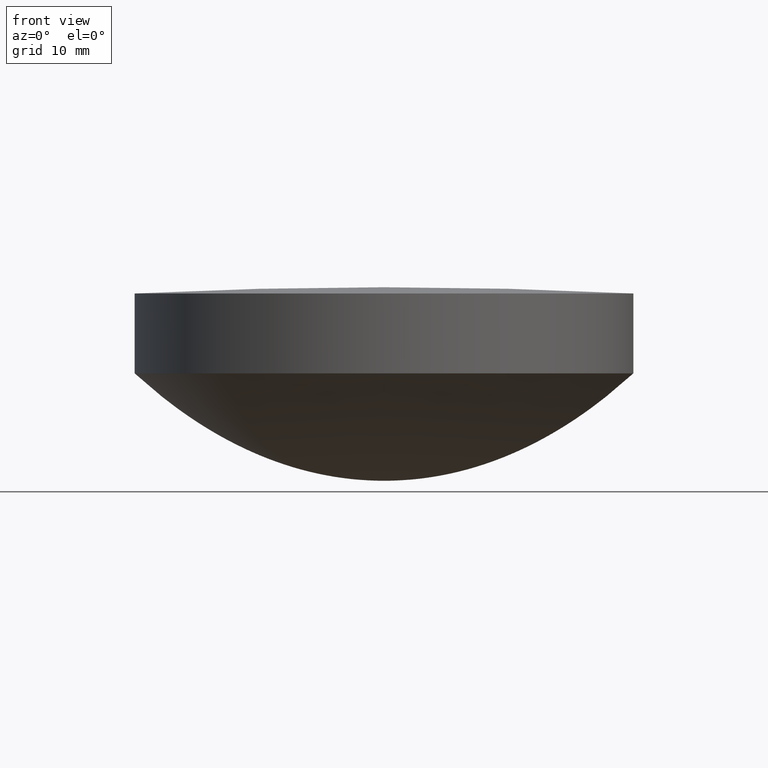
[diagram: clean part render]
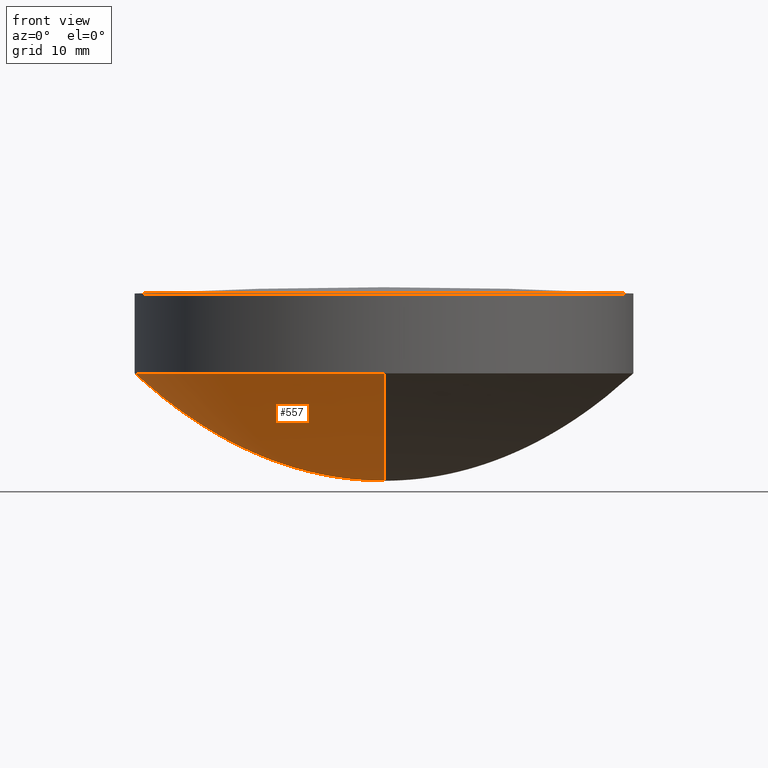
[diagram: same view with one face highlighted and labeled with its STEP entity id]
A machine part, front view. The second image highlights one B-rep face of the part: STEP entity #557.
In plain terms, the highlighted face is a freeform B-spline surface patch.
Its self-contained STEP definition (entity closure, byte-faithful):
#1 = CARTESIAN_POINT ( 'NONE',  ( -20.85846900400949977, -20.85846900400949977, 7.346323978459765591 ) ) ;
#2 = CARTESIAN_POINT ( 'NONE',  ( 5.905113600387482897, 5.905113600387467798, 0.5636193277801658796 ) ) ;
#4 = CARTESIAN_POINT ( 'NONE',  ( 20.85846900400949977, 20.85846900400949977, 7.346323978459765591 ) ) ;
#5 = CARTESIAN_POINT ( 'NONE',  ( 5.905113600387467798, -5.905113600387482897, 0.5636193277801673229 ) ) ;
#7 = CARTESIAN_POINT ( 'NONE',  ( -1.189743640055599959E-14, -17.37214179088919863, 5.033512682667420357 ) ) ;
#8 = CARTESIAN_POINT ( 'NONE',  ( -3.823211282214349804, 4.897040876387050416E-15, 0.2278546630517420124 ) ) ;
#10 = CARTESIAN_POINT ( 'NONE',  ( -16.33441800193228133, 16.33441800193239146, 4.430272686558109463 ) ) ;
#12 = CARTESIAN_POINT ( 'NONE',  ( -15.28359183643268793, -15.28359183643268793, 3.871337583447103103 ) ) ;
#13 = CARTESIAN_POINT ( 'NONE',  ( 0.6950013867032536208, 0.6950013867032492909, 0.000000000000000000 ) ) ;
#14 = CARTESIAN_POINT ( 'NONE',  ( 10.07908763383689887, -10.07908763383699835, 1.653328185034999676 ) ) ;
#15 = CARTESIAN_POINT ( 'NONE',  ( -1.215333604269309965E-14, -19.46172094395829788, 6.363201708622150399 ) ) ;
#16 = CARTESIAN_POINT ( 'NONE',  ( -1.100429485761179963E-14, -10.07908763383690065, 1.653328185035000120 ) ) ;
#17 = ORIENTED_EDGE ( 'NONE', *, *, #667, .F. ) ;
#19 = CARTESIAN_POINT ( 'NONE',  ( -10.07908763383699835, -10.07908763383689887, 1.653328185034999676 ) ) ;
#24 = CARTESIAN_POINT ( 'NONE',  ( 0.000000000000000000, 13.20684684988859914, 2.866247647743300320 ) ) ;
#25 = CARTESIAN_POINT ( 'NONE',  ( 0.000000000000000000, 0.000000000000000000, 0.000000000000000000 ) ) ;
#27 = CARTESIAN_POINT ( 'NONE',  ( 0.000000000000000000, 19.46172094395829788, 6.363201708622150399 ) ) ;
#30 = CARTESIAN_POINT ( 'NONE',  ( 0.000000000000000000, 2.778867257252229717, 0.1218098665559840116 ) ) ;
#41 = CARTESIAN_POINT ( 'NONE',  ( 7.888609052210119806E-31, 1.564219604220989712, 0.02941336789115490263 ) ) ;
#43 = CARTESIAN_POINT ( 'NONE',  ( 0.000000000000000000, 25.00000000000000000, 10.76935298651310191 ) ) ;
#45 = CARTESIAN_POINT ( 'NONE',  ( 9.031328295233819858, -9.031328295233834069, 1.329141889889510431 ) ) ;
#48 = VERTEX_POINT ( 'NONE', #602 ) ;
#49 = CARTESIAN_POINT ( 'NONE',  ( -1.256096827675829896E-14, -22.79029073525660110, 8.829490268801798436 ) ) ;
#50 = CARTESIAN_POINT ( 'NONE',  ( 6.951195123766318318, 6.951195123766305883, 0.7773047103505097422 ) ) ;
#52 = CARTESIAN_POINT ( 'NONE',  ( -17.37214179088919863, 5.726673595352979530E-15, 5.033512682667420357 ) ) ;
#53 = CARTESIAN_POINT ( 'NONE',  ( 0.000000000000000000, 5.905113600387469575, 0.5636193277801659907 ) ) ;
#56 = CARTESIAN_POINT ( 'NONE',  ( 7.888609052210119806E-31, 22.79029073525660110, 8.829490268801798436 ) ) ;
#57 = CARTESIAN_POINT ( 'NONE',  ( 4.864470756008762109, 4.864470756008748786, 0.3780127833940811755 ) ) ;
#60 = CARTESIAN_POINT ( 'NONE',  ( 17.37214179088919863, -8.298236589057690210E-15, 5.033512682667420357 ) ) ;
#63 = CARTESIAN_POINT ( 'NONE',  ( 19.46172094395829788, -8.682086052263349772E-15, 6.363201708622150399 ) ) ;
#65 = CARTESIAN_POINT ( 'NONE',  ( 14.24541506404807834, 14.24541506404807834, 3.349350597949512842 ) ) ;
#66 = CARTESIAN_POINT ( 'NONE',  ( 0.6950013867032489578, -5.234695596820090297E-15, 0.000000000000000000 ) ) ;
#67 = CARTESIAN_POINT ( 'NONE',  ( -1.283157961456979886E-14, -25.00000000000000000, 10.76935298651310191 ) ) ;
#69 = CARTESIAN_POINT ( 'NONE',  ( 12.15749446058419814, -12.15749446058419814, 2.427402912589510020 ) ) ;
#71 = CARTESIAN_POINT ( 'NONE',  ( -1.202448731581449846E-14, -18.40959124445349815, 5.677625292109239830 ) ) ;
#74 = CARTESIAN_POINT ( 'NONE',  ( 14.24541506404807834, -14.24541506404807834, 3.349350597949512842 ) ) ;
#77 = CARTESIAN_POINT ( 'NONE',  ( 7.888609052210119806E-31, 15.28359183643270036, 3.871337583447099995 ) ) ;
#78 = CARTESIAN_POINT ( 'NONE',  ( -13.20684684988860091, -13.20684684988860091, 2.866247647743300764 ) ) ;
#84 = CARTESIAN_POINT ( 'NONE',  ( 24.15614782068171706, 24.15614782068157851, 10.00039978366080007 ) ) ;
#89 = CARTESIAN_POINT ( 'NONE',  ( 0.000000000000000000, 5.905113600387469575, 0.5636193277801659907 ) ) ;
#95 = CARTESIAN_POINT ( 'NONE',  ( -1.049313046363300038E-14, -5.905113600387469575, 0.5636193277801669899 ) ) ;
#96 = CARTESIAN_POINT ( 'NONE',  ( -1.036568847079060044E-14, -4.864470756008760333, 0.3780127833940800097 ) ) ;
#100 = CARTESIAN_POINT ( 'NONE',  ( -9.961524269848648577E-15, -1.564219604220989712, 0.02941336789115640143 ) ) ;
#102 = CARTESIAN_POINT ( 'NONE',  ( 20.85846900400950332, -8.938664508406890628E-15, 7.346323978459770032 ) ) ;
#103 = CARTESIAN_POINT ( 'NONE',  ( 0.000000000000000000, 6.951195123766310324, 0.7773047103505090760 ) ) ;
#106 = CARTESIAN_POINT ( 'NONE',  ( -20.85846900400949977, 20.85846900400949977, 7.346323978459765591 ) ) ;
#107 = CARTESIAN_POINT ( 'NONE',  ( -1.049313046363300038E-14, -5.905113600387469575, 0.5636193277801669899 ) ) ;
#109 = CARTESIAN_POINT ( 'NONE',  ( 0.000000000000000000, 20.85846900400950332, 7.346323978459770032 ) ) ;
#110 = CARTESIAN_POINT ( 'NONE',  ( -2.778867257252236378, -2.778867257252229273, 0.1218098665559830263 ) ) ;
#112 = CARTESIAN_POINT ( 'NONE',  ( -19.46172094395830143, 19.46172094395830143, 6.363201708622155728 ) ) ;
#113 = CARTESIAN_POINT ( 'NONE',  ( -25.00000000000000000, 3.061616997868379887E-15, 10.76935298651310191 ) ) ;
#116 = CARTESIAN_POINT ( 'NONE',  ( 18.40959124445348394, -18.40959124445348394, 5.677625292109241606 ) ) ;
#119 = CARTESIAN_POINT ( 'NONE',  ( -11.11853514199949977, 5.343750627068510039E-15, 2.021718256513890033 ) ) ;
#120 = CARTESIAN_POINT ( 'NONE',  ( 0.000000000000000000, 0.000000000000000000, 0.000000000000000000 ) ) ;
#122 = CARTESIAN_POINT ( 'NONE',  ( 13.20684684988859914, -7.533084321507529499E-15, 2.866247647743300320 ) ) ;
#123 = CARTESIAN_POINT ( 'NONE',  ( -1.164166279889760023E-14, -15.28359183643270036, 3.871337583447099995 ) ) ;
#124 = CARTESIAN_POINT ( 'NONE',  ( 0.000000000000000000, 10.07908763383690065, 1.653328185034990128 ) ) ;
#125 = VERTEX_POINT ( 'NONE', #503 ) ;
#129 = CARTESIAN_POINT ( 'NONE',  ( -12.15749446058419814, -12.15749446058419814, 2.427402912589510020 ) ) ;
#131 = CARTESIAN_POINT ( 'NONE',  ( 0.000000000000000000, 20.85846900400950332, 7.346323978459770032 ) ) ;
#141 = CARTESIAN_POINT ( 'NONE',  ( -1.074864445519370031E-14, -7.991543677521639744, 1.035149238036800146 ) ) ;
#144 = CARTESIAN_POINT ( 'NONE',  ( 1.530808498934190141E-15, 25.00000000000000000, 10.76935298651310191 ) ) ;
#146 = CARTESIAN_POINT ( 'NONE',  ( -1.100429485761179963E-14, -10.07908763383690065, 1.653328185035000120 ) ) ;
#148 = CARTESIAN_POINT ( 'NONE',  ( 0.000000000000000000, 3.823211282214349804, 0.2278546630517420124 ) ) ;
#150 = CARTESIAN_POINT ( 'NONE',  ( -25.00000000000000355, 25.00000000000000355, 10.76935298651310546 ) ) ;
#151 = CARTESIAN_POINT ( 'NONE',  ( -7.888609052210119806E-31, 4.864470756008760333, 0.3780127833940810089 ) ) ;
#153 = B_SPLINE_CURVE_WITH_KNOTS ( 'NONE', 3,
 ( #67, #284, #390, #500, #15, #71, #649, #175, #123, #288, #173, #232, #223, #146, #464, #141, #572, #95, #200, #303, #469, #674, #420, #252 ),
 .UNSPECIFIED., .F., .F.,
 ( 4, 1, 1, 1, 1, 1, 1, 1, 1, 1, 1, 1, 1, 1, 1, 1, 1, 1, 1, 1, 1, 4 ),
 ( 0.000000000000000000, 0.1229010503966929957, 0.1935708684875130092, 0.2621222389561400079, 0.3067336890552199713, 0.3287332553817179925, 0.3935804273098579831, 0.4359173143977180254, 0.4568373513230660210, 0.5186738697918750196, 0.5591905958425089640, 0.5792556588951830454, 0.6387441682536969534, 0.6778732220164499500, 0.6972968285093580354, 0.7550674466977830290, 0.7932207973581240079, 0.8122067193442279454, 0.8688628073624710124, 0.9064369206342729468, 0.9251819328508389395, 1.000000000000000000 ),
 .UNSPECIFIED. ) ;
#154 = CARTESIAN_POINT ( 'NONE',  ( 15.28359183643268793, -15.28359183643268793, 3.871337583447103103 ) ) ;
#155 = CARTESIAN_POINT ( 'NONE',  ( 5.905113600387469575, -6.191777683673118827E-15, 0.5636193277801669899 ) ) ;
#157 = CARTESIAN_POINT ( 'NONE',  ( 16.33441800193239146, 16.33441800193228133, 4.430272686558109463 ) ) ;
#158 = CARTESIAN_POINT ( 'NONE',  ( -7.991543677521645961, 7.991543677521645961, 1.035149238036799257 ) ) ;
#161 = CARTESIAN_POINT ( 'NONE',  ( 19.46172094395830143, 19.46172094395830143, 6.363201708622155728 ) ) ;
#162 = CARTESIAN_POINT ( 'NONE',  ( 0.000000000000000000, 2.778867257252229717, 0.1218098665559840116 ) ) ;
#164 = CARTESIAN_POINT ( 'NONE',  ( -22.79029073525660110, -22.79029073525660110, 8.829490268801800212 ) ) ;
#165 = CARTESIAN_POINT ( 'NONE',  ( 0.000000000000000000, 0.000000000000000000, 0.000000000000000000 ) ) ;
#167 = CARTESIAN_POINT ( 'NONE',  ( 17.37214179088920574, -17.37214179088920574, 5.033512682667418581 ) ) ;
#168 = CARTESIAN_POINT ( 'NONE',  ( -1.283157961456979886E-14, -25.00000000000000000, 10.76935298651310191 ) ) ;
#171 = CARTESIAN_POINT ( 'NONE',  ( -10.07908763383689887, 10.07908763383699835, 1.653328185034991238 ) ) ;
#173 = CARTESIAN_POINT ( 'NONE',  ( -1.138733488885590034E-14, -13.20684684988859914, 2.866247647743300320 ) ) ;
#174 = CARTESIAN_POINT ( 'NONE',  ( -11.11853514199950688, 11.11853514199950688, 2.021718256513889589 ) ) ;
#175 = CARTESIAN_POINT ( 'NONE',  ( -1.177035188890149828E-14, -16.33441800193239857, 4.430272686558109463 ) ) ;
#176 = CARTESIAN_POINT ( 'NONE',  ( 12.15749446058419814, 12.15749446058419814, 2.427402912589510020 ) ) ;
#177 = VERTEX_POINT ( 'NONE', #646 ) ;
#180 = CARTESIAN_POINT ( 'NONE',  ( -11.11853514199950688, -11.11853514199950688, 2.021718256513889589 ) ) ;
#183 = CARTESIAN_POINT ( 'NONE',  ( 0.000000000000000000, 24.15614782068159982, 10.00039978366080184 ) ) ;
#184 = B_SPLINE_CURVE_WITH_KNOTS ( 'NONE', 3,
 ( #606, #183, #554, #131, #27, #304, #189, #246, #77, #516, #24, #410, #236, #465, #455, #355, #187, #89, #357, #306, #30, #310, #570, #25 ),
 .UNSPECIFIED., .F., .F.,
 ( 4, 1, 1, 1, 1, 1, 1, 1, 1, 1, 1, 1, 1, 1, 1, 1, 1, 1, 1, 1, 1, 4 ),
 ( 0.000000000000000000, 0.1229010503966929957, 0.1935708684875130092, 0.2621222389561400079, 0.3067336890552199713, 0.3287332553817179925, 0.3935804273098579831, 0.4359173143977180254, 0.4568373513230660210, 0.5186738697918750196, 0.5591905958425089640, 0.5792556588951830454, 0.6387441682536969534, 0.6778732220164499500, 0.6972968285093580354, 0.7550674466977830290, 0.7932207973581240079, 0.8122067193442279454, 0.8688628073624710124, 0.9064369206342729468, 0.9251819328508389395, 1.000000000000000000 ),
 .UNSPECIFIED. ) ;
#187 = CARTESIAN_POINT ( 'NONE',  ( 0.000000000000000000, 6.951195123766310324, 0.7773047103505090760 ) ) ;
#189 = CARTESIAN_POINT ( 'NONE',  ( 0.000000000000000000, 17.37214179088919863, 5.033512682667420357 ) ) ;
#191 = CARTESIAN_POINT ( 'NONE',  ( -1.272823752753419907E-14, -24.15614782068159982, 10.00039978366080184 ) ) ;
#197 = CARTESIAN_POINT ( 'NONE',  ( -25.00000000000000000, 3.061616997868379887E-15, 10.76935298651310191 ) ) ;
#200 = CARTESIAN_POINT ( 'NONE',  ( -1.036568847079060044E-14, -4.864470756008760333, 0.3780127833940800097 ) ) ;
#203 = CARTESIAN_POINT ( 'NONE',  ( 0.000000000000000000, 7.991543677521639744, 1.035149238036800146 ) ) ;
#205 = CARTESIAN_POINT ( 'NONE',  ( -1.023817096262419816E-14, -3.823211282214349804, 0.2278546630517420124 ) ) ;
#208 = CARTESIAN_POINT ( 'NONE',  ( 0.000000000000000000, 19.46172094395829788, 6.363201708622150399 ) ) ;
#209 = CARTESIAN_POINT ( 'NONE',  ( -4.864470756008769214, -4.864470756008748786, 0.3780127833940796767 ) ) ;
#211 = CARTESIAN_POINT ( 'NONE',  ( -22.79029073525660110, 6.058439533454139470E-15, 8.829490268801798436 ) ) ;
#212 = CARTESIAN_POINT ( 'NONE',  ( -7.888609052210119806E-31, 4.864470756008760333, 0.3780127833940810089 ) ) ;
#214 = CARTESIAN_POINT ( 'NONE',  ( 16.33441800193228133, -16.33441800193239146, 4.430272686558109463 ) ) ;
#215 = CARTESIAN_POINT ( 'NONE',  ( -1.011027570588629850E-14, -2.778867257252229717, 0.1218098665559829985 ) ) ;
#218 = EDGE_CURVE ( 'NONE', #177, #125, #153, .T. ) ;
#219 = CARTESIAN_POINT ( 'NONE',  ( 0.000000000000000000, 16.33441800193239857, 4.430272686558109463 ) ) ;
#220 = CARTESIAN_POINT ( 'NONE',  ( -0.6950013867032589499, 4.705493264607110262E-15, 0.000000000000000000 ) ) ;
#221 = CARTESIAN_POINT ( 'NONE',  ( -14.24541506404807834, -14.24541506404807834, 3.349350597949512842 ) ) ;
#222 = CARTESIAN_POINT ( 'NONE',  ( 0.000000000000000000, 0.6950013867032539538, 0.000000000000000000 ) ) ;
#223 = CARTESIAN_POINT ( 'NONE',  ( -1.113159046398710005E-14, -11.11853514199949977, 2.021718256513890033 ) ) ;
#225 = CARTESIAN_POINT ( 'NONE',  ( 10.07908763383690065, -6.958524274641328746E-15, 1.653328185035000120 ) ) ;
#226 = CARTESIAN_POINT ( 'NONE',  ( 0.000000000000000000, 0.000000000000000000, 0.000000000000000000 ) ) ;
#230 = CARTESIAN_POINT ( 'NONE',  ( -13.20684684988860091, 13.20684684988860091, 2.866247647743300764 ) ) ;
#231 = ORIENTED_EDGE ( 'NONE', *, *, #296, .T. ) ;
#232 = CARTESIAN_POINT ( 'NONE',  ( -1.125882628438199991E-14, -12.15749446058419814, 2.427402912589510464 ) ) ;
#233 = CARTESIAN_POINT ( 'NONE',  ( -9.031328295233839398, 5.215946067866010359E-15, 1.329141889889509986 ) ) ;
#234 = VERTEX_POINT ( 'NONE', #515 ) ;
#236 = CARTESIAN_POINT ( 'NONE',  ( 0.000000000000000000, 11.11853514199949977, 2.021718256513890033 ) ) ;
#246 = CARTESIAN_POINT ( 'NONE',  ( 0.000000000000000000, 16.33441800193239857, 4.430272686558109463 ) ) ;
#252 = CARTESIAN_POINT ( 'NONE',  ( 0.000000000000000000, 0.000000000000000000, 0.000000000000000000 ) ) ;
#254 = CARTESIAN_POINT ( 'NONE',  ( -25.00000000000000000, 25.00000000000000000, 10.76935298651310546 ) ) ;
#256 = CARTESIAN_POINT ( 'NONE',  ( -1.564219604220989490, 1.564219604220997928, 0.02941336789115489223 ) ) ;
#258 = ORIENTED_EDGE ( 'NONE', *, *, #218, .F. ) ;
#260 = CARTESIAN_POINT ( 'NONE',  ( 4.864470756008748786, -4.864470756008769214, 0.3780127833940796767 ) ) ;
#263 =( BOUNDED_SURFACE ( )  B_SPLINE_SURFACE ( 3, 2, ( 
 ( #407, #150, #412, #613, #663, #513, #526, #617, #43 ),
 ( #668, #298, #352, #509, #191, #458, #561, #84, #301 ),
 ( #56, #590, #211, #164, #49, #267, #481, #264, #379 ),
 ( #109, #106, #435, #1, #543, #587, #102, #4, #329 ),
 ( #326, #112, #640, #275, #431, #537, #63, #161, #208 ),
 ( #540, #271, #372, #323, #534, #116, #383, #279, #424 ),
 ( #495, #487, #52, #643, #7, #167, #60, #427, #491 ),
 ( #484, #10, #385, #632, #635, #214, #594, #157, #219 ),
 ( #439, #580, #332, #12, #629, #154, #531, #375, #320 ),
 ( #583, #648, #504, #221, #442, #74, #555, #65, #552 ),
 ( #342, #230, #346, #78, #402, #388, #122, #451, #645 ),
 ( #607, #449, #291, #129, #282, #69, #446, #176, #651 ),
 ( #338, #174, #119, #180, #392, #286, #502, #396, #334 ),
 ( #124, #171, #499, #19, #16, #14, #225, #601, #597 ),
 ( #603, #545, #233, #548, #654, #45, #268, #538, #327 ),
 ( #581, #158, #482, #324, #630, #584, #474, #680, #203 ),
 ( #103, #321, #532, #527, #376, #422, #272, #50, #524 ),
 ( #53, #627, #265, #535, #107, #5, #155, #2, #488 ),
 ( #151, #373, #485, #209, #96, #260, #477, #57, #212 ),
 ( #148, #428, #8, #633, #205, #380, #432, #588, #636 ),
 ( #162, #313, #425, #110, #215, #369, #436, #366, #574 ),
 ( #41, #256, #678, #578, #100, #316, #393, #287, #595 ),
 ( #222, #591, #220, #549, #389, #496, #66, #13, #544 ),
 ( #330, #492, #333, #541, #120, #386, #226, #641, #165 ) ),
 .UNSPECIFIED., .F., .T., .F. ) 
 B_SPLINE_SURFACE_WITH_KNOTS ( ( 4, 1, 1, 1, 1, 1, 1, 1, 1, 1, 1, 1, 1, 1, 1, 1, 1, 1, 1, 1, 1, 4 ),
 ( 3, 2, 2, 2, 3 ),
 ( 0.000000000000000000, 0.1229010503966929957, 0.1935708684875130092, 0.2621222389561400079, 0.3067336890552199713, 0.3287332553817179925, 0.3935804273098579831, 0.4359173143977180254, 0.4568373513230660210, 0.5186738697918750196, 0.5591905958425089640, 0.5792556588951830454, 0.6387441682536969534, 0.6778732220164499500, 0.6972968285093580354, 0.7550674466977830290, 0.7932207973581240079, 0.8122067193442279454, 0.8688628073624710124, 0.9064369206342729468, 0.9251819328508389395, 1.000000000000000000 ),
 ( 0.000000000000000000, 90.00000000000000000, 180.0000000000000000, 270.0000000000000000, 360.0000000000000000 ),
 .UNSPECIFIED. ) 
 GEOMETRIC_REPRESENTATION_ITEM ( )  RATIONAL_B_SPLINE_SURFACE ( (
 ( 1.000000000000000000, 0.7071067811865480168, 1.000000000000000000, 0.7071067811865480168, 1.000000000000000000, 0.7071067811865480168, 1.000000000000000000, 0.7071067811865480168, 1.000000000000000000),
 ( 1.000000000000000000, 0.7071067811865480168, 1.000000000000000000, 0.7071067811865480168, 1.000000000000000000, 0.7071067811865480168, 1.000000000000000000, 0.7071067811865480168, 1.000000000000000000),
 ( 1.000000000000000000, 0.7071067811865480168, 1.000000000000000000, 0.7071067811865480168, 1.000000000000000000, 0.7071067811865480168, 1.000000000000000000, 0.7071067811865480168, 1.000000000000000000),
 ( 1.000000000000000000, 0.7071067811865480168, 1.000000000000000000, 0.7071067811865480168, 1.000000000000000000, 0.7071067811865480168, 1.000000000000000000, 0.7071067811865480168, 1.000000000000000000),
 ( 1.000000000000000000, 0.7071067811865480168, 1.000000000000000000, 0.7071067811865480168, 1.000000000000000000, 0.7071067811865480168, 1.000000000000000000, 0.7071067811865480168, 1.000000000000000000),
 ( 1.000000000000000000, 0.7071067811865480168, 1.000000000000000000, 0.7071067811865480168, 1.000000000000000000, 0.7071067811865480168, 1.000000000000000000, 0.7071067811865480168, 1.000000000000000000),
 ( 1.000000000000000000, 0.7071067811865480168, 1.000000000000000000, 0.7071067811865480168, 1.000000000000000000, 0.7071067811865480168, 1.000000000000000000, 0.7071067811865480168, 1.000000000000000000),
 ( 1.000000000000000000, 0.7071067811865480168, 1.000000000000000000, 0.7071067811865480168, 1.000000000000000000, 0.7071067811865480168, 1.000000000000000000, 0.7071067811865480168, 1.000000000000000000),
 ( 1.000000000000000000, 0.7071067811865480168, 1.000000000000000000, 0.7071067811865480168, 1.000000000000000000, 0.7071067811865480168, 1.000000000000000000, 0.7071067811865480168, 1.000000000000000000),
 ( 1.000000000000000000, 0.7071067811865480168, 1.000000000000000000, 0.7071067811865480168, 1.000000000000000000, 0.7071067811865480168, 1.000000000000000000, 0.7071067811865480168, 1.000000000000000000),
 ( 1.000000000000000000, 0.7071067811865480168, 1.000000000000000000, 0.7071067811865480168, 1.000000000000000000, 0.7071067811865480168, 1.000000000000000000, 0.7071067811865480168, 1.000000000000000000),
 ( 1.000000000000000000, 0.7071067811865480168, 1.000000000000000000, 0.7071067811865480168, 1.000000000000000000, 0.7071067811865480168, 1.000000000000000000, 0.7071067811865480168, 1.000000000000000000),
 ( 1.000000000000000000, 0.7071067811865480168, 1.000000000000000000, 0.7071067811865480168, 1.000000000000000000, 0.7071067811865480168, 1.000000000000000000, 0.7071067811865480168, 1.000000000000000000),
 ( 1.000000000000000000, 0.7071067811865480168, 1.000000000000000000, 0.7071067811865480168, 1.000000000000000000, 0.7071067811865480168, 1.000000000000000000, 0.7071067811865480168, 1.000000000000000000),
 ( 1.000000000000000000, 0.7071067811865480168, 1.000000000000000000, 0.7071067811865480168, 1.000000000000000000, 0.7071067811865480168, 1.000000000000000000, 0.7071067811865480168, 1.000000000000000000),
 ( 1.000000000000000000, 0.7071067811865480168, 1.000000000000000000, 0.7071067811865480168, 1.000000000000000000, 0.7071067811865480168, 1.000000000000000000, 0.7071067811865480168, 1.000000000000000000),
 ( 1.000000000000000000, 0.7071067811865480168, 1.000000000000000000, 0.7071067811865480168, 1.000000000000000000, 0.7071067811865480168, 1.000000000000000000, 0.7071067811865480168, 1.000000000000000000),
 ( 1.000000000000000000, 0.7071067811865480168, 1.000000000000000000, 0.7071067811865480168, 1.000000000000000000, 0.7071067811865480168, 1.000000000000000000, 0.7071067811865480168, 1.000000000000000000),
 ( 1.000000000000000000, 0.7071067811865480168, 1.000000000000000000, 0.7071067811865480168, 1.000000000000000000, 0.7071067811865480168, 1.000000000000000000, 0.7071067811865480168, 1.000000000000000000),
 ( 1.000000000000000000, 0.7071067811865480168, 1.000000000000000000, 0.7071067811865480168, 1.000000000000000000, 0.7071067811865480168, 1.000000000000000000, 0.7071067811865480168, 1.000000000000000000),
 ( 1.000000000000000000, 0.7071067811865480168, 1.000000000000000000, 0.7071067811865480168, 1.000000000000000000, 0.7071067811865480168, 1.000000000000000000, 0.7071067811865480168, 1.000000000000000000),
 ( 1.000000000000000000, 0.7071067811865480168, 1.000000000000000000, 0.7071067811865480168, 1.000000000000000000, 0.7071067811865480168, 1.000000000000000000, 0.7071067811865480168, 1.000000000000000000),
 ( 1.000000000000000000, 0.7071067811865480168, 1.000000000000000000, 0.7071067811865480168, 1.000000000000000000, 0.7071067811865480168, 1.000000000000000000, 0.7071067811865480168, 1.000000000000000000),
 ( 1.000000000000000000, 0.7071067811865480168, 1.000000000000000000, 0.7071067811865480168, 1.000000000000000000, 0.7071067811865480168, 1.000000000000000000, 0.7071067811865480168, 1.000000000000000000) ) ) 
 REPRESENTATION_ITEM ( '' )  SURFACE ( )  );
#264 = CARTESIAN_POINT ( 'NONE',  ( 22.79029073525660110, 22.79029073525660110, 8.829490268801800212 ) ) ;
#265 = CARTESIAN_POINT ( 'NONE',  ( -5.905113600387480233, 5.024520626891460206E-15, 0.5636193277801669899 ) ) ;
#267 = CARTESIAN_POINT ( 'NONE',  ( 22.79029073525660110, -22.79029073525660110, 8.829490268801800212 ) ) ;
#268 = CARTESIAN_POINT ( 'NONE',  ( 9.031328295233830517, -6.766054006596770075E-15, 1.329141889889509986 ) ) ;
#271 = CARTESIAN_POINT ( 'NONE',  ( -18.40959124445348394, 18.40959124445348394, 5.677625292109241606 ) ) ;
#272 = CARTESIAN_POINT ( 'NONE',  ( 6.951195123766299666, -6.383939742061079964E-15, 0.7773047103505080768 ) ) ;
#275 = CARTESIAN_POINT ( 'NONE',  ( -19.46172094395830143, -19.46172094395830143, 6.363201708622155728 ) ) ;
#279 = CARTESIAN_POINT ( 'NONE',  ( 18.40959124445348394, 18.40959124445348394, 5.677625292109241606 ) ) ;
#280 = CARTESIAN_POINT ( 'NONE',  ( -25.00000000000000355, -24.99999999999974420, 10.76935298651310724 ) ) ;
#282 = CARTESIAN_POINT ( 'NONE',  ( -1.125882628438199991E-14, -12.15749446058419814, 2.427402912589510464 ) ) ;
#284 = CARTESIAN_POINT ( 'NONE',  ( -1.272823752753419907E-14, -24.15614782068159982, 10.00039978366080184 ) ) ;
#286 = CARTESIAN_POINT ( 'NONE',  ( 11.11853514199950688, -11.11853514199950688, 2.021718256513889589 ) ) ;
#287 = CARTESIAN_POINT ( 'NONE',  ( 1.564219604220989490, 1.564219604220989490, 0.02941336789115489223 ) ) ;
#288 = CARTESIAN_POINT ( 'NONE',  ( -1.151452281277259944E-14, -14.24541506404810143, 3.349350597949509734 ) ) ;
#291 = CARTESIAN_POINT ( 'NONE',  ( -12.15749446058419814, 5.407368537265959970E-15, 2.427402912589510464 ) ) ;
#296 = EDGE_CURVE ( 'NONE', #234, #125, #184, .T. ) ;
#298 = CARTESIAN_POINT ( 'NONE',  ( -24.15614782068157851, 24.15614782068171706, 10.00039978366080007 ) ) ;
#301 = CARTESIAN_POINT ( 'NONE',  ( 0.000000000000000000, 24.15614782068159982, 10.00039978366080184 ) ) ;
#303 = CARTESIAN_POINT ( 'NONE',  ( -1.023817096262419816E-14, -3.823211282214349804, 0.2278546630517420124 ) ) ;
#304 = CARTESIAN_POINT ( 'NONE',  ( 0.000000000000000000, 18.40959124445349815, 5.677625292109239830 ) ) ;
#306 = CARTESIAN_POINT ( 'NONE',  ( 0.000000000000000000, 3.823211282214349804, 0.2278546630517420124 ) ) ;
#310 = CARTESIAN_POINT ( 'NONE',  ( 7.888609052210119806E-31, 1.564219604220989712, 0.02941336789115490263 ) ) ;
#313 = CARTESIAN_POINT ( 'NONE',  ( -2.778867257252229273, 2.778867257252236378, 0.1218098665559840255 ) ) ;
#316 = CARTESIAN_POINT ( 'NONE',  ( 1.564219604220981052, -1.564219604220997928, 0.02941336789115638062 ) ) ;
#320 = CARTESIAN_POINT ( 'NONE',  ( 7.888609052210119806E-31, 15.28359183643270036, 3.871337583447099995 ) ) ;
#321 = CARTESIAN_POINT ( 'NONE',  ( -6.951195123766318318, 6.951195123766318318, 0.7773047103505097422 ) ) ;
#323 = CARTESIAN_POINT ( 'NONE',  ( -18.40959124445348394, -18.40959124445348394, 5.677625292109241606 ) ) ;
#324 = CARTESIAN_POINT ( 'NONE',  ( -7.991543677521645961, -7.991543677521645961, 1.035149238036799257 ) ) ;
#326 = CARTESIAN_POINT ( 'NONE',  ( 0.000000000000000000, 19.46172094395829788, 6.363201708622150399 ) ) ;
#327 = CARTESIAN_POINT ( 'NONE',  ( 0.000000000000000000, 9.031328295233830517, 1.329141889889509986 ) ) ;
#329 = CARTESIAN_POINT ( 'NONE',  ( 0.000000000000000000, 20.85846900400950332, 7.346323978459770032 ) ) ;
#330 = CARTESIAN_POINT ( 'NONE',  ( 0.000000000000000000, 0.000000000000000000, 0.000000000000000000 ) ) ;
#332 = CARTESIAN_POINT ( 'NONE',  ( -15.28359183643270036, 5.598786794523760128E-15, 3.871337583447099995 ) ) ;
#333 = CARTESIAN_POINT ( 'NONE',  ( 0.000000000000000000, 0.000000000000000000, 0.000000000000000000 ) ) ;
#334 = CARTESIAN_POINT ( 'NONE',  ( 0.000000000000000000, 11.11853514199949977, 2.021718256513890033 ) ) ;
#338 = CARTESIAN_POINT ( 'NONE',  ( 0.000000000000000000, 11.11853514199949977, 2.021718256513890033 ) ) ;
#342 = CARTESIAN_POINT ( 'NONE',  ( 0.000000000000000000, 13.20684684988859914, 2.866247647743300320 ) ) ;
#346 = CARTESIAN_POINT ( 'NONE',  ( -13.20684684988859914, 5.471622839502929115E-15, 2.866247647743300320 ) ) ;
#352 = CARTESIAN_POINT ( 'NONE',  ( -24.15614782068159982, 6.142074158842060336E-15, 10.00039978366080184 ) ) ;
#355 = CARTESIAN_POINT ( 'NONE',  ( 0.000000000000000000, 7.991543677521639744, 1.035149238036800146 ) ) ;
#357 = CARTESIAN_POINT ( 'NONE',  ( -7.888609052210119806E-31, 4.864470756008760333, 0.3780127833940810089 ) ) ;
#366 = CARTESIAN_POINT ( 'NONE',  ( 2.778867257252236378, 2.778867257252229273, 0.1218098665559840255 ) ) ;
#369 = CARTESIAN_POINT ( 'NONE',  ( 2.778867257252221723, -2.778867257252236378, 0.1218098665559830263 ) ) ;
#372 = CARTESIAN_POINT ( 'NONE',  ( -18.40959124445349815, 5.790199052982209243E-15, 5.677625292109239830 ) ) ;
#373 = CARTESIAN_POINT ( 'NONE',  ( -4.864470756008762109, 4.864470756008762109, 0.3780127833940811755 ) ) ;
#375 = CARTESIAN_POINT ( 'NONE',  ( 15.28359183643268793, 15.28359183643268793, 3.871337583447103103 ) ) ;
#376 = CARTESIAN_POINT ( 'NONE',  ( -1.062123850255829887E-14, -6.951195123766310324, 0.7773047103505080768 ) ) ;
#379 = CARTESIAN_POINT ( 'NONE',  ( 7.888609052210119806E-31, 22.79029073525660110, 8.829490268801798436 ) ) ;
#380 = CARTESIAN_POINT ( 'NONE',  ( 3.823211282214336926, -3.823211282214351581, 0.2278546630517423177 ) ) ;
#383 = CARTESIAN_POINT ( 'NONE',  ( 18.40959124445349815, -8.488812961945388815E-15, 5.677625292109239830 ) ) ;
#385 = CARTESIAN_POINT ( 'NONE',  ( -16.33441800193239857, 5.663131339525729664E-15, 4.430272686558109463 ) ) ;
#386 = CARTESIAN_POINT ( 'NONE',  ( 0.000000000000000000, 0.000000000000000000, 0.000000000000000000 ) ) ;
#388 = CARTESIAN_POINT ( 'NONE',  ( 13.20684684988860091, -13.20684684988860091, 2.866247647743300764 ) ) ;
#389 = CARTESIAN_POINT ( 'NONE',  ( -9.855075739064291030E-15, -0.6950013867032539538, 0.000000000000000000 ) ) ;
#390 = CARTESIAN_POINT ( 'NONE',  ( -1.256096827675829896E-14, -22.79029073525660110, 8.829490268801798436 ) ) ;
#392 = CARTESIAN_POINT ( 'NONE',  ( -1.113159046398710005E-14, -11.11853514199949977, 2.021718256513890033 ) ) ;
#393 = CARTESIAN_POINT ( 'NONE',  ( 1.564219604220989712, -5.394368392996640029E-15, 0.02941336789115570061 ) ) ;
#396 = CARTESIAN_POINT ( 'NONE',  ( 11.11853514199950688, 11.11853514199950688, 2.021718256513889589 ) ) ;
#402 = CARTESIAN_POINT ( 'NONE',  ( -1.138733488885590034E-14, -13.20684684988859914, 2.866247647743300320 ) ) ;
#407 = CARTESIAN_POINT ( 'NONE',  ( 0.000000000000000000, 25.00000000000000000, 10.76935298651310191 ) ) ;
#410 = CARTESIAN_POINT ( 'NONE',  ( 0.000000000000000000, 12.15749446058419814, 2.427402912589510464 ) ) ;
#412 = CARTESIAN_POINT ( 'NONE',  ( -25.00000000000000000, 6.193745202359849977E-15, 10.76935298651310191 ) ) ;
#420 = CARTESIAN_POINT ( 'NONE',  ( -9.855075739064291030E-15, -0.6950013867032539538, 0.000000000000000000 ) ) ;
#422 = CARTESIAN_POINT ( 'NONE',  ( 6.951195123766305883, -6.951195123766318318, 0.7773047103505081878 ) ) ;
#424 = CARTESIAN_POINT ( 'NONE',  ( 0.000000000000000000, 18.40959124445349815, 5.677625292109239830 ) ) ;
#425 = CARTESIAN_POINT ( 'NONE',  ( -2.778867257252239931, 4.833093248018120309E-15, 0.1218098665559829985 ) ) ;
#427 = CARTESIAN_POINT ( 'NONE',  ( 17.37214179088920574, 17.37214179088920574, 5.033512682667418581 ) ) ;
#428 = CARTESIAN_POINT ( 'NONE',  ( -3.823211282214351581, 3.823211282214351581, 0.2278546630517423177 ) ) ;
#431 = CARTESIAN_POINT ( 'NONE',  ( -1.215333604269309965E-14, -19.46172094395829788, 6.363201708622150399 ) ) ;
#432 = CARTESIAN_POINT ( 'NONE',  ( 3.823211282214340034, -5.809338432159899713E-15, 0.2278546630517420124 ) ) ;
#435 = CARTESIAN_POINT ( 'NONE',  ( -20.85846900400950332, 5.940149568469379669E-15, 7.346323978459770032 ) ) ;
#436 = CARTESIAN_POINT ( 'NONE',  ( 2.778867257252229717, -5.617495547053119648E-15, 0.1218098665559829985 ) ) ;
#438 = EDGE_CURVE ( 'NONE', #234, #48, #639, .T. ) ;
#439 = CARTESIAN_POINT ( 'NONE',  ( 7.888609052210119806E-31, 15.28359183643270036, 3.871337583447099995 ) ) ;
#442 = CARTESIAN_POINT ( 'NONE',  ( -1.151452281277259944E-14, -14.24541506404810143, 3.349350597949509734 ) ) ;
#446 = CARTESIAN_POINT ( 'NONE',  ( 12.15749446058419814, -7.340321414796639418E-15, 2.427402912589510464 ) ) ;
#449 = CARTESIAN_POINT ( 'NONE',  ( -12.15749446058419814, 12.15749446058419814, 2.427402912589510020 ) ) ;
#450 = ORIENTED_EDGE ( 'NONE', *, *, #438, .F. ) ;
#451 = CARTESIAN_POINT ( 'NONE',  ( 13.20684684988860091, 13.20684684988860091, 2.866247647743300764 ) ) ;
#455 = CARTESIAN_POINT ( 'NONE',  ( 0.000000000000000000, 9.031328295233830517, 1.329141889889509986 ) ) ;
#458 = CARTESIAN_POINT ( 'NONE',  ( 24.15614782068157851, -24.15614782068171706, 10.00039978366080007 ) ) ;
#462 = FACE_OUTER_BOUND ( 'NONE', #480, .T. ) ;
#464 = CARTESIAN_POINT ( 'NONE',  ( -1.087598134558209911E-14, -9.031328295233830517, 1.329141889889509986 ) ) ;
#465 = CARTESIAN_POINT ( 'NONE',  ( 0.000000000000000000, 10.07908763383690065, 1.653328185034990128 ) ) ;
#469 = CARTESIAN_POINT ( 'NONE',  ( -1.011027570588629850E-14, -2.778867257252229717, 0.1218098665559829985 ) ) ;
#474 = CARTESIAN_POINT ( 'NONE',  ( 7.991543677521639744, -6.575048671014190012E-15, 1.035149238036800146 ) ) ;
#477 = CARTESIAN_POINT ( 'NONE',  ( 4.864470756008749674, -6.000614694409519705E-15, 0.3780127833940800097 ) ) ;
#480 = EDGE_LOOP ( 'NONE', ( #258, #17, #450, #231 ) ) ;
#481 = CARTESIAN_POINT ( 'NONE',  ( 22.79029073525660110, -9.293534403361159775E-15, 8.829490268801798436 ) ) ;
#482 = CARTESIAN_POINT ( 'NONE',  ( -7.991543677521650402, 5.152277622671810167E-15, 1.035149238036800146 ) ) ;
#484 = CARTESIAN_POINT ( 'NONE',  ( 0.000000000000000000, 16.33441800193239857, 4.430272686558109463 ) ) ;
#485 = CARTESIAN_POINT ( 'NONE',  ( -4.864470756008760333, 4.960799630470260235E-15, 0.3780127833940800097 ) ) ;
#487 = CARTESIAN_POINT ( 'NONE',  ( -17.37214179088920574, 17.37214179088920574, 5.033512682667418581 ) ) ;
#488 = CARTESIAN_POINT ( 'NONE',  ( 0.000000000000000000, 5.905113600387469575, 0.5636193277801659907 ) ) ;
#491 = CARTESIAN_POINT ( 'NONE',  ( 0.000000000000000000, 17.37214179088919863, 5.033512682667420357 ) ) ;
#492 = CARTESIAN_POINT ( 'NONE',  ( 0.000000000000000000, 0.000000000000000000, 0.000000000000000000 ) ) ;
#495 = CARTESIAN_POINT ( 'NONE',  ( 0.000000000000000000, 17.37214179088919863, 5.033512682667420357 ) ) ;
#496 = CARTESIAN_POINT ( 'NONE',  ( 0.6950013867032437398, -0.6950013867032592829, 0.000000000000000000 ) ) ;
#499 = CARTESIAN_POINT ( 'NONE',  ( -10.07908763383700013, 5.280102823880859831E-15, 1.653328185035000120 ) ) ;
#500 = CARTESIAN_POINT ( 'NONE',  ( -1.232438834678879987E-14, -20.85846900400950332, 7.346323978459770032 ) ) ;
#502 = CARTESIAN_POINT ( 'NONE',  ( 11.11853514199949977, -7.149467684204269906E-15, 2.021718256513890033 ) ) ;
#503 = CARTESIAN_POINT ( 'NONE',  ( 0.000000000000000000, 0.000000000000000000, 0.000000000000000000 ) ) ;
#504 = CARTESIAN_POINT ( 'NONE',  ( -14.24541506404810143, 5.535216801461259737E-15, 3.349350597949509734 ) ) ;
#509 = CARTESIAN_POINT ( 'NONE',  ( -24.15614782068171706, -24.15614782068157851, 10.00039978366080007 ) ) ;
#513 = CARTESIAN_POINT ( 'NONE',  ( 25.00000000000000355, -25.00000000000000355, 10.76935298651310546 ) ) ;
#515 = CARTESIAN_POINT ( 'NONE',  ( 1.530808498934190141E-15, 25.00000000000000000, 10.76935298651310191 ) ) ;
#516 = CARTESIAN_POINT ( 'NONE',  ( 0.000000000000000000, 14.24541506404810143, 3.349350597949509734 ) ) ;
#524 = CARTESIAN_POINT ( 'NONE',  ( 0.000000000000000000, 6.951195123766310324, 0.7773047103505090760 ) ) ;
#526 = CARTESIAN_POINT ( 'NONE',  ( 25.00000000000000000, -9.699451410078289719E-15, 10.76935298651310191 ) ) ;
#527 = CARTESIAN_POINT ( 'NONE',  ( -6.951195123766318318, -6.951195123766305883, 0.7773047103505081878 ) ) ;
#531 = CARTESIAN_POINT ( 'NONE',  ( 15.28359183643270036, -7.914576186570020961E-15, 3.871337583447099995 ) ) ;
#532 = CARTESIAN_POINT ( 'NONE',  ( -6.951195123766310324, 5.088574646354110237E-15, 0.7773047103505080768 ) ) ;
#534 = CARTESIAN_POINT ( 'NONE',  ( -1.202448731581449846E-14, -18.40959124445349815, 5.677625292109239830 ) ) ;
#535 = CARTESIAN_POINT ( 'NONE',  ( -5.905113600387489114, -5.905113600387467798, 0.5636193277801673229 ) ) ;
#537 = CARTESIAN_POINT ( 'NONE',  ( 19.46172094395830143, -19.46172094395830143, 6.363201708622155728 ) ) ;
#538 = CARTESIAN_POINT ( 'NONE',  ( 9.031328295233834069, 9.031328295233819858, 1.329141889889510431 ) ) ;
#540 = CARTESIAN_POINT ( 'NONE',  ( 0.000000000000000000, 18.40959124445349815, 5.677625292109239830 ) ) ;
#541 = CARTESIAN_POINT ( 'NONE',  ( 0.000000000000000000, 0.000000000000000000, 0.000000000000000000 ) ) ;
#543 = CARTESIAN_POINT ( 'NONE',  ( -1.232438834678879987E-14, -20.85846900400950332, 7.346323978459770032 ) ) ;
#544 = CARTESIAN_POINT ( 'NONE',  ( 0.000000000000000000, 0.6950013867032539538, 0.000000000000000000 ) ) ;
#545 = CARTESIAN_POINT ( 'NONE',  ( -9.031328295233834069, 9.031328295233834069, 1.329141889889510431 ) ) ;
#548 = CARTESIAN_POINT ( 'NONE',  ( -9.031328295233834069, -9.031328295233834069, 1.329141889889510431 ) ) ;
#549 = CARTESIAN_POINT ( 'NONE',  ( -0.6950013867032635018, -0.6950013867032492909, 0.000000000000000000 ) ) ;
#552 = CARTESIAN_POINT ( 'NONE',  ( 0.000000000000000000, 14.24541506404810143, 3.349350597949509734 ) ) ;
#554 = CARTESIAN_POINT ( 'NONE',  ( 7.888609052210119806E-31, 22.79029073525660110, 8.829490268801798436 ) ) ;
#555 = CARTESIAN_POINT ( 'NONE',  ( 14.24541506404810143, -7.723866207382518999E-15, 3.349350597949509734 ) ) ;
#557 = ADVANCED_FACE ( 'NONE', ( #462 ), #263, .T. ) ;
#561 = CARTESIAN_POINT ( 'NONE',  ( 24.15614782068159982, -9.544438279524929475E-15, 10.00039978366080184 ) ) ;
#570 = CARTESIAN_POINT ( 'NONE',  ( 0.000000000000000000, 0.6950013867032539538, 0.000000000000000000 ) ) ;
#572 = CARTESIAN_POINT ( 'NONE',  ( -1.062123850255829887E-14, -6.951195123766310324, 0.7773047103505080768 ) ) ;
#574 = CARTESIAN_POINT ( 'NONE',  ( 0.000000000000000000, 2.778867257252229717, 0.1218098665559840116 ) ) ;
#578 = CARTESIAN_POINT ( 'NONE',  ( -1.564219604220997928, -1.564219604220989490, 0.02941336789115638062 ) ) ;
#580 = CARTESIAN_POINT ( 'NONE',  ( -15.28359183643268793, 15.28359183643268793, 3.871337583447103103 ) ) ;
#581 = CARTESIAN_POINT ( 'NONE',  ( 0.000000000000000000, 7.991543677521639744, 1.035149238036800146 ) ) ;
#583 = CARTESIAN_POINT ( 'NONE',  ( 0.000000000000000000, 14.24541506404810143, 3.349350597949509734 ) ) ;
#584 = CARTESIAN_POINT ( 'NONE',  ( 7.991543677521630862, -7.991543677521645961, 1.035149238036799257 ) ) ;
#587 = CARTESIAN_POINT ( 'NONE',  ( 20.85846900400949977, -20.85846900400949977, 7.346323978459765591 ) ) ;
#588 = CARTESIAN_POINT ( 'NONE',  ( 3.823211282214351581, 3.823211282214336926, 0.2278546630517423177 ) ) ;
#590 = CARTESIAN_POINT ( 'NONE',  ( -22.79029073525660110, 22.79029073525660110, 8.829490268801800212 ) ) ;
#591 = CARTESIAN_POINT ( 'NONE',  ( -0.6950013867032536208, 0.6950013867032592829, 0.000000000000000000 ) ) ;
#594 = CARTESIAN_POINT ( 'NONE',  ( 16.33441800193230264, -8.107609821575920891E-15, 4.430272686558109463 ) ) ;
#595 = CARTESIAN_POINT ( 'NONE',  ( 7.888609052210119806E-31, 1.564219604220989712, 0.02941336789115490263 ) ) ;
#597 = CARTESIAN_POINT ( 'NONE',  ( 0.000000000000000000, 10.07908763383690065, 1.653328185034990128 ) ) ;
#601 = CARTESIAN_POINT ( 'NONE',  ( 10.07908763383699835, 10.07908763383689887, 1.653328185034991238 ) ) ;
#602 = CARTESIAN_POINT ( 'NONE',  ( -25.00000000000000000, 3.061616997868379887E-15, 10.76935298651310191 ) ) ;
#603 = CARTESIAN_POINT ( 'NONE',  ( 0.000000000000000000, 9.031328295233830517, 1.329141889889509986 ) ) ;
#606 = CARTESIAN_POINT ( 'NONE',  ( 1.530808498934190141E-15, 25.00000000000000000, 10.76935298651310191 ) ) ;
#607 = CARTESIAN_POINT ( 'NONE',  ( 0.000000000000000000, 12.15749446058419814, 2.427402912589510464 ) ) ;
#613 = CARTESIAN_POINT ( 'NONE',  ( -25.00000000000000355, -25.00000000000000355, 10.76935298651310546 ) ) ;
#617 = CARTESIAN_POINT ( 'NONE',  ( 25.00000000000000355, 25.00000000000000355, 10.76935298651310546 ) ) ;
#627 = CARTESIAN_POINT ( 'NONE',  ( -5.905113600387467798, 5.905113600387482897, 0.5636193277801658796 ) ) ;
#629 = CARTESIAN_POINT ( 'NONE',  ( -1.164166279889760023E-14, -15.28359183643270036, 3.871337583447099995 ) ) ;
#630 = CARTESIAN_POINT ( 'NONE',  ( -1.074864445519370031E-14, -7.991543677521639744, 1.035149238036800146 ) ) ;
#632 = CARTESIAN_POINT ( 'NONE',  ( -16.33441800193239146, -16.33441800193228133, 4.430272686558109463 ) ) ;
#633 = CARTESIAN_POINT ( 'NONE',  ( -3.823211282214358242, -3.823211282214336926, 0.2278546630517423177 ) ) ;
#635 = CARTESIAN_POINT ( 'NONE',  ( -1.177035188890149828E-14, -16.33441800193239857, 4.430272686558109463 ) ) ;
#636 = CARTESIAN_POINT ( 'NONE',  ( 0.000000000000000000, 3.823211282214349804, 0.2278546630517420124 ) ) ;
#639 =( BOUNDED_CURVE ( )  B_SPLINE_CURVE ( 2, ( #144, #254, #197 ),
 .UNSPECIFIED., .F., .F. ) 
 B_SPLINE_CURVE_WITH_KNOTS ( ( 3, 3 ),
 ( 1.570796326794899889, 3.141592653589790007 ),
 .UNSPECIFIED. ) 
 CURVE ( )  GEOMETRIC_REPRESENTATION_ITEM ( )  RATIONAL_B_SPLINE_CURVE ( ( 1.000000000000000000, 0.7071067811865480168, 1.000000000000000000 ) ) 
 REPRESENTATION_ITEM ( '' )  );
#640 = CARTESIAN_POINT ( 'NONE',  ( -19.46172094395829788, 5.854623416421539817E-15, 6.363201708622150399 ) ) ;
#641 = CARTESIAN_POINT ( 'NONE',  ( 0.000000000000000000, 0.000000000000000000, 0.000000000000000000 ) ) ;
#643 = CARTESIAN_POINT ( 'NONE',  ( -17.37214179088920574, -17.37214179088920574, 5.033512682667418581 ) ) ;
#645 = CARTESIAN_POINT ( 'NONE',  ( 0.000000000000000000, 13.20684684988859914, 2.866247647743300320 ) ) ;
#646 = CARTESIAN_POINT ( 'NONE',  ( -1.283157961456979886E-14, -25.00000000000000000, 10.76935298651310191 ) ) ;
#648 = CARTESIAN_POINT ( 'NONE',  ( -14.24541506404807834, 14.24541506404807834, 3.349350597949512842 ) ) ;
#649 = CARTESIAN_POINT ( 'NONE',  ( -1.189743640055599959E-14, -17.37214179088919863, 5.033512682667420357 ) ) ;
#651 = CARTESIAN_POINT ( 'NONE',  ( 0.000000000000000000, 12.15749446058419814, 2.427402912589510464 ) ) ;
#654 = CARTESIAN_POINT ( 'NONE',  ( -1.087598134558209911E-14, -9.031328295233830517, 1.329141889889509986 ) ) ;
#662 =( BOUNDED_CURVE ( )  B_SPLINE_CURVE ( 2, ( #113, #280, #168 ),
 .UNSPECIFIED., .F., .T. ) 
 B_SPLINE_CURVE_WITH_KNOTS ( ( 3, 3 ),
 ( 3.141592653589790007, 4.712388980384678128 ),
 .UNSPECIFIED. ) 
 CURVE ( )  GEOMETRIC_REPRESENTATION_ITEM ( )  RATIONAL_B_SPLINE_CURVE ( ( 1.000000000000000000, 0.7071067811865501263, 0.9999999999999978906 ) ) 
 REPRESENTATION_ITEM ( '' )  );
#663 = CARTESIAN_POINT ( 'NONE',  ( -1.283157961456979886E-14, -25.00000000000000000, 10.76935298651310191 ) ) ;
#667 = EDGE_CURVE ( 'NONE', #48, #177, #662, .T. ) ;
#668 = CARTESIAN_POINT ( 'NONE',  ( 0.000000000000000000, 24.15614782068159982, 10.00039978366080184 ) ) ;
#674 = CARTESIAN_POINT ( 'NONE',  ( -9.961524269848648577E-15, -1.564219604220989712, 0.02941336789115640143 ) ) ;
#678 = CARTESIAN_POINT ( 'NONE',  ( -1.564219604220999926, 4.758717529999299291E-15, 0.02941336789115570061 ) ) ;
#680 = CARTESIAN_POINT ( 'NONE',  ( 7.991543677521645961, 7.991543677521645961, 1.035149238036799257 ) ) ;